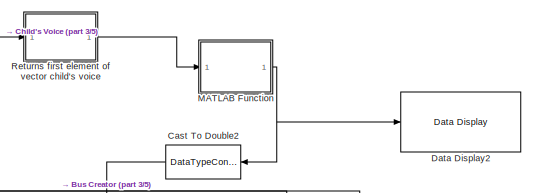
[diagram: root canvas - part 1/5, top center region]
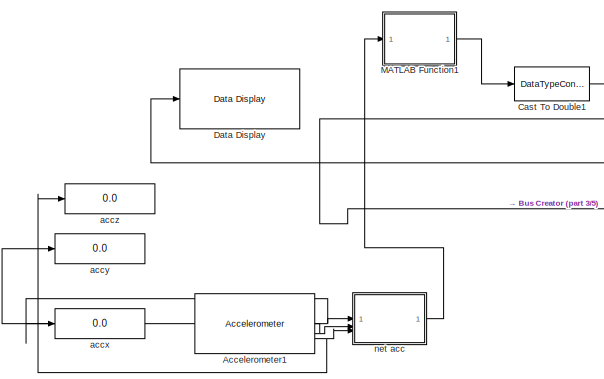
[diagram: root canvas - part 2/5, top left region]
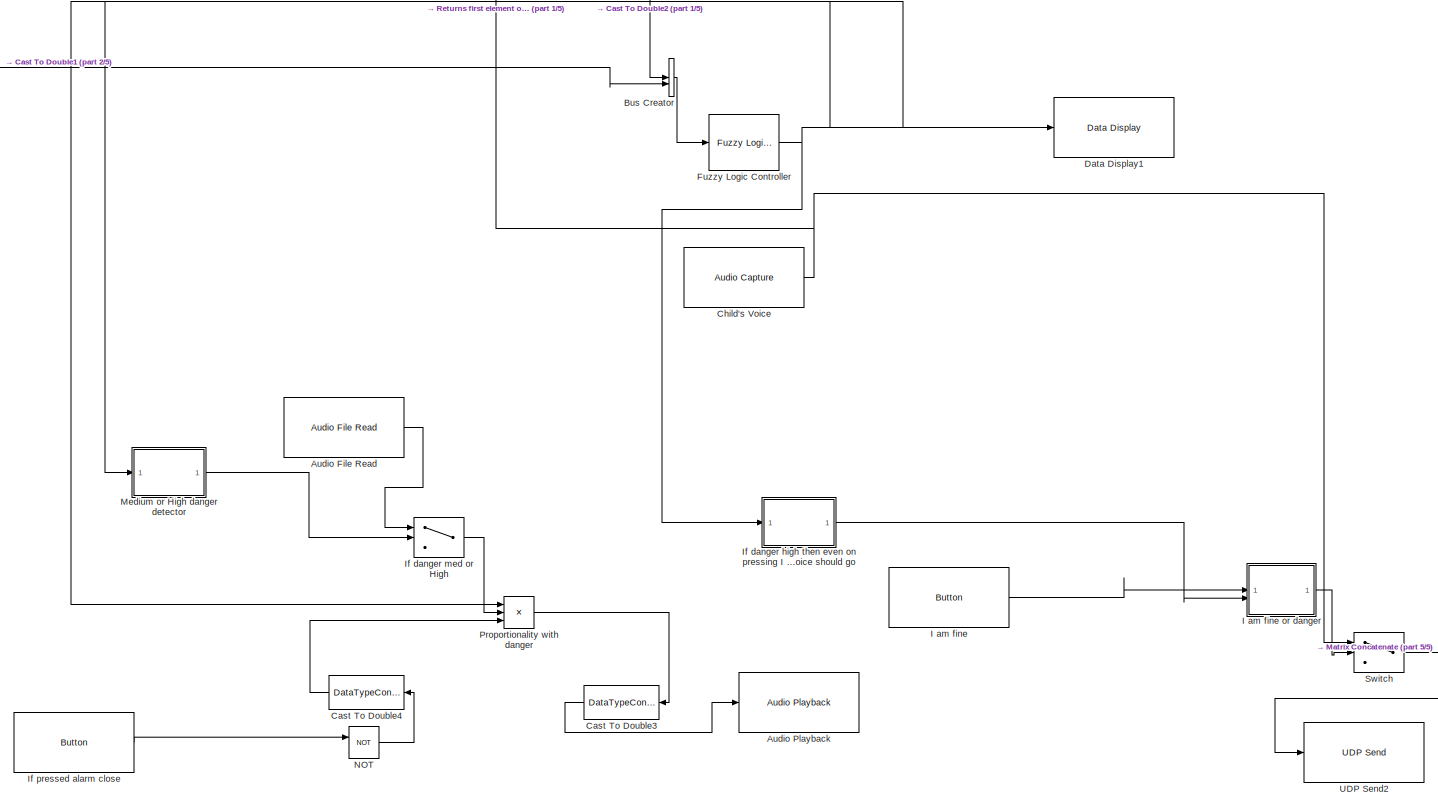
[diagram: root canvas - part 3/5, center side, full height]
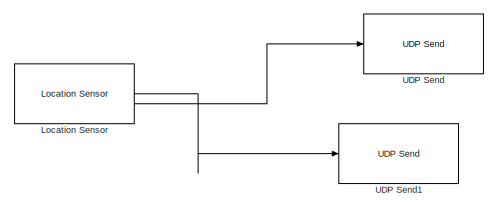
[diagram: root canvas - part 4/5, middle right region]
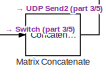
[diagram: root canvas - part 5/5, bottom right region]
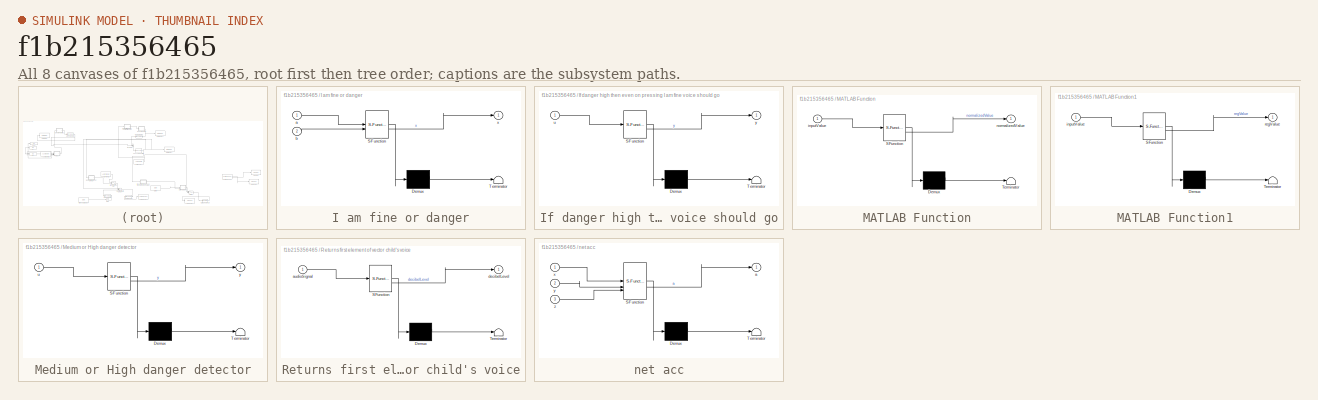
[diagram: thumbnail index - all 8 canvases of the model, root first then tree order]
MODEL slx_f1b215356465
KIND model
CONFIG AbsTol = auto
CONFIG EnableMultiTasking = off
CONFIG FixedStep = auto
CONFIG MaxStep = auto
CONFIG MinStep = auto
CONFIG RelTol = 1e-3
CONFIG SampleTimeConstraint = Unconstrained
CONFIG SolverName = FixedStepAuto
CONFIG StartTime = 0.0
CONFIG StopTime = inf
BLOCK [Reference] Accelerometer1  REF=androidsensorlib/Accelerometer
  SourceBlock = androidsensorlib/Accelerometer
  SourceType = codertarget.internal.androidAccelerometer
BLOCK [Reference] Audio File Read  REF=androidaudiovideolib/Audio File Read
  SourceBlock = androidaudiovideolib/Audio File Read
  SourceType = codertarget.internal.androidAudioFileRead
BLOCK [Reference] Audio Playback  REF=androidaudiovideolib/Audio Playback
  SourceBlock = androidaudiovideolib/Audio Playback
  SourceType = codertarget.internal.androidAudioPlayback
BLOCK [BusCreator] Bus Creator
  DisplayOption = bar
  InheritFromInputs = on
  Inputs = 2
BLOCK [DataTypeConversion] Cast To Double1
  OutDataTypeStr = double
  RndMeth = Floor
  SaturateOnIntegerOverflow = off
BLOCK [DataTypeConversion] Cast To Double2
  OutDataTypeStr = double
  RndMeth = Floor
  SaturateOnIntegerOverflow = off
BLOCK [DataTypeConversion] Cast To Double3
  OutDataTypeStr = int16
  RndMeth = Floor
  SaturateOnIntegerOverflow = off
BLOCK [DataTypeConversion] Cast To Double4
  OutDataTypeStr = double
  RndMeth = Floor
  SaturateOnIntegerOverflow = off
BLOCK [Reference] Child's Voice  REF=androidaudiovideolib/Audio Capture
  SourceBlock = androidaudiovideolib/Audio Capture
  SourceType = codertarget.internal.androidAudioCapture
BLOCK [Reference] Data Display  REF=androiduilib/Data Display
  SourceBlock = androiduilib/Data Display
  SourceType = codertarget.internal.androidDataDisplay
BLOCK [Reference] Data Display1  REF=androiduilib/Data Display
  SourceBlock = androiduilib/Data Display
  SourceType = codertarget.internal.androidDataDisplay
BLOCK [Reference] Data Display2  REF=androiduilib/Data Display
  SourceBlock = androiduilib/Data Display
  SourceType = codertarget.internal.androidDataDisplay
BLOCK [Reference] Fuzzy Logic Controller  REF=fuzblock/Fuzzy Logic   (lib defined in mdl_858b3b3e7478)
Controller
  SourceBlock = fuzblock/Fuzzy Logic \nController
  SourceType = Fuzzy Inference System
BLOCK [Reference] I am fine  REF=androiduilib/Button
  SourceBlock = androiduilib/Button
  SourceType = codertarget.internal.androidButton
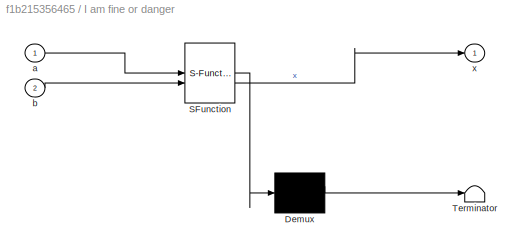
BLOCK [SubSystem] I am fine or danger
  ErrorFcn = Stateflow.Translate.translate
  PermitHierarchicalResolution = ExplicitOnly
  SFBlockType = MATLAB Function
  TreatAsAtomicUnit = on
BLOCK [Demux] I am fine or danger/ Demux 
  Outputs = 1
BLOCK [S-Function] I am fine or danger/ SFunction 
  EnableBusSupport = on
  FunctionName = sf_sfun
  PortCounts = [2 2]
  SFcnIsStateOwnerBlock = off
  SFunctionDeploymentMode = off
  Tag = Stateflow S-Function 1
BLOCK [Terminator] I am fine or danger/ Terminator 
BLOCK [Inport] I am fine or danger/a
BLOCK [Inport] I am fine or danger/b
  Port = 2
BLOCK [Outport] I am fine or danger/x
BLOCK [SubSystem] If danger high then even on pressing I am fine voice should go
  ErrorFcn = Stateflow.Translate.translate
  PermitHierarchicalResolution = ExplicitOnly
  SFBlockType = MATLAB Function
  TreatAsAtomicUnit = on
BLOCK [Demux] If danger high then even on pressing I am fine voice should go/ Demux 
  Outputs = 1
BLOCK [S-Function] If danger high then even on pressing I am fine voice should go/ SFunction 
  EnableBusSupport = on
  FunctionName = sf_sfun
  PortCounts = [1 2]
  SFcnIsStateOwnerBlock = off
  SFunctionDeploymentMode = off
  Tag = Stateflow S-Function 13
BLOCK [Terminator] If danger high then even on pressing I am fine voice should go/ Terminator 
BLOCK [Inport] If danger high then even on pressing I am fine voice should go/u
BLOCK [Outport] If danger high then even on pressing I am fine voice should go/y
BLOCK [Switch] If danger med or High
  Criteria = u2 > Threshold
  InputSameDT = off
  SaturateOnIntegerOverflow = off
BLOCK [Reference] If pressed alarm close  REF=androiduilib/Button
  SourceBlock = androiduilib/Button
  SourceType = codertarget.internal.androidButton
BLOCK [Reference] Location Sensor  REF=androidsensorlib/Location Sensor
  SourceBlock = androidsensorlib/Location Sensor
  SourceType = codertarget.internal.androidLocation
BLOCK [SubSystem] MATLAB Function
  ErrorFcn = Stateflow.Translate.translate
  PermitHierarchicalResolution = ExplicitOnly
  SFBlockType = MATLAB Function
  TreatAsAtomicUnit = on
BLOCK [Demux] MATLAB Function/ Demux 
  Outputs = 1
BLOCK [S-Function] MATLAB Function/ SFunction 
  EnableBusSupport = on
  FunctionName = sf_sfun
  PortCounts = [1 2]
  SFcnIsStateOwnerBlock = off
  SFunctionDeploymentMode = off
  Tag = Stateflow S-Function 4
BLOCK [Terminator] MATLAB Function/ Terminator 
BLOCK [Inport] MATLAB Function/inputValue
BLOCK [Outport] MATLAB Function/normalizedValue
BLOCK [SubSystem] MATLAB Function1
  ErrorFcn = Stateflow.Translate.translate
  PermitHierarchicalResolution = ExplicitOnly
  SFBlockType = MATLAB Function
  TreatAsAtomicUnit = on
BLOCK [Demux] MATLAB Function1/ Demux 
  Outputs = 1
BLOCK [S-Function] MATLAB Function1/ SFunction 
  EnableBusSupport = on
  FunctionName = sf_sfun
  PortCounts = [1 2]
  SFcnIsStateOwnerBlock = off
  SFunctionDeploymentMode = off
  Tag = Stateflow S-Function 5
BLOCK [Terminator] MATLAB Function1/ Terminator 
BLOCK [Inport] MATLAB Function1/inputValue
BLOCK [Outport] MATLAB Function1/regValue
BLOCK [Concatenate] Matrix Concatenate
  ConcatenateDimension = 2
  Mode = Multidimensional array
  NumInputs = 1
BLOCK [SubSystem] Medium or High danger detector
  ErrorFcn = Stateflow.Translate.translate
  PermitHierarchicalResolution = ExplicitOnly
  SFBlockType = MATLAB Function
  TreatAsAtomicUnit = on
BLOCK [Demux] Medium or High danger detector/ Demux 
  Outputs = 1
BLOCK [S-Function] Medium or High danger detector/ SFunction 
  EnableBusSupport = on
  FunctionName = sf_sfun
  PortCounts = [1 2]
  SFcnIsStateOwnerBlock = off
  SFunctionDeploymentMode = off
  Tag = Stateflow S-Function 10
BLOCK [Terminator] Medium or High danger detector/ Terminator 
BLOCK [Inport] Medium or High danger detector/u
BLOCK [Outport] Medium or High danger detector/y
BLOCK [Logic] NOT
  AllPortsSameDT = off
  IconShape = distinctive
  Operator = NOT
  OutDataTypeStr = boolean
BLOCK [Product] Proportionality with danger
  InputSameDT = on
  Inputs = 3
BLOCK [SubSystem] Returns first element of vector child's voice
  ErrorFcn = Stateflow.Translate.translate
  PermitHierarchicalResolution = ExplicitOnly
  SFBlockType = MATLAB Function
  TreatAsAtomicUnit = on
BLOCK [Demux] Returns first element of vector child's voice/ Demux 
  Outputs = 1
BLOCK [S-Function] Returns first element of vector child's voice/ SFunction 
  EnableBusSupport = on
  FunctionName = sf_sfun
  PortCounts = [1 2]
  SFcnIsStateOwnerBlock = off
  SFunctionDeploymentMode = off
  Tag = Stateflow S-Function 3
BLOCK [Terminator] Returns first element of vector child's voice/ Terminator 
BLOCK [Inport] Returns first element of vector child's voice/audioSignal
BLOCK [Outport] Returns first element of vector child's voice/decibelLevel
BLOCK [Switch] Switch
  Criteria = u2 > Threshold
  InputSameDT = off
  SaturateOnIntegerOverflow = off
BLOCK [Reference] UDP Send  REF=androidcommunicationlib/UDP Send
  SourceBlock = androidcommunicationlib/UDP Send
  SourceType = UDP Send
BLOCK [Reference] UDP Send1  REF=androidcommunicationlib/UDP Send
  SourceBlock = androidcommunicationlib/UDP Send
  SourceType = UDP Send
BLOCK [Reference] UDP Send2  REF=androidcommunicationlib/UDP Send
  SourceBlock = androidcommunicationlib/UDP Send
  SourceType = UDP Send
BLOCK [Display] accx
  Decimation = 1
BLOCK [Display] accy
  Decimation = 1
BLOCK [Display] accz
  Decimation = 1
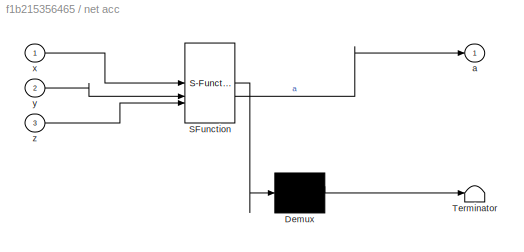
BLOCK [SubSystem] net acc
  ErrorFcn = Stateflow.Translate.translate
  PermitHierarchicalResolution = ExplicitOnly
  SFBlockType = MATLAB Function
  TreatAsAtomicUnit = on
BLOCK [Demux] net acc/ Demux 
  Outputs = 1
BLOCK [S-Function] net acc/ SFunction 
  EnableBusSupport = on
  FunctionName = sf_sfun
  PortCounts = [3 2]
  SFcnIsStateOwnerBlock = off
  SFunctionDeploymentMode = off
  Tag = Stateflow S-Function 2
BLOCK [Terminator] net acc/ Terminator 
BLOCK [Outport] net acc/a
BLOCK [Inport] net acc/x
BLOCK [Inport] net acc/y
  Port = 2
BLOCK [Inport] net acc/z
  Port = 3
NET Accelerometer1:1 -> accx:1, net acc:1
NET Accelerometer1:2 -> accy:1, net acc:2
NET Accelerometer1:3 -> accz:1, net acc:3
LINE Audio File Read:1 -> If danger med or High:1
LINE Bus Creator:1 -> Fuzzy Logic Controller:1
NET Cast To Double1:1 -> Bus Creator:2, Data Display:1
LINE Cast To Double2:1 -> Bus Creator:1
LINE Cast To Double3:1 -> Audio Playback:1
LINE Cast To Double4:1 -> Proportionality with danger:3
NET Child's Voice:1 -> Returns first element of vector child's voice:1, Switch:1
NET Fuzzy Logic Controller:1 -> Data Display1:1, If danger high then even on pressing I am fine voice should go:1, Medium or High danger detector:1, Proportionality with danger:1
LINE I am fine or danger:1 -> Switch:2
LINE I am fine:1 -> I am fine or danger:1
LINE If danger high then even on pressing I am fine voice should go:1 -> I am fine or danger:2
LINE If danger med or High:1 -> Proportionality with danger:2
LINE If pressed alarm close:1 -> NOT:1
LINE Location Sensor:1 -> UDP Send1:1
LINE Location Sensor:2 -> UDP Send:1
LINE MATLAB Function1:1 -> Cast To Double1:1
NET MATLAB Function:1 -> Cast To Double2:1, Data Display2:1
LINE Matrix Concatenate:1 -> UDP Send2:1
LINE Medium or High danger detector:1 -> If danger med or High:2
LINE NOT:1 -> Cast To Double4:1
LINE Proportionality with danger:1 -> Cast To Double3:1
LINE Returns first element of vector child's voice:1 -> MATLAB Function:1
LINE Switch:1 -> Matrix Concatenate:1
LINE net acc:1 -> MATLAB Function1:1
note: NET lines group one-source signal fan-out (src -> all destinations, sorted); 1:1 wires keep LINE
CHART net acc states=1 transitions=1
  STATE_LABEL 'eML_blk_kernel()'
  STATE_LABEL 'SCRIPT:\nfunction a = fcn(x,y,z)\n\na = (x^2+y^2+z^2)^(0.5);\n'
CHART Returns first element of vector child's voice states=1 transitions=1
  STATE_LABEL 'eML_blk_kernel()'
  STATE_LABEL 'SCRIPT:\nfunction decibelLevel = calculateDecibel(audioSignal)\n    % Convert int16 values to double for calculations\n    audioSignal = double(audioSignal);\n    \n    % Separate left and right channels\n    leftChannel = audioSignal(:, 1);\n    rightChannel = audioSignal(:, 2);\n\n    % Combine left and right channels for RMS calculation\n    combinedSignal = (leftChannel + rightChannel) / 2;\n\n    % Defin...<+735ch>'
CHART MATLAB Function states=1 transitions=1
  STATE_LABEL 'eML_blk_kernel()'
  STATE_LABEL 'SCRIPT:\nfunction normalizedValue = normalizeInput(inputValue)\n    % Ensure input value falls within the specified range\n    if inputValue < 30\n        inputValue = 30;\n    elseif inputValue > 100\n        inputValue = 100;\n    end\n\n    % Perform normalization\n    normalizedValue = (inputValue - 40) / (100);\nend\n'
CHART MATLAB Function1 states=1 transitions=1
  STATE_LABEL 'eML_blk_kernel()'
  STATE_LABEL "SCRIPT:\nfunction regValue = normalizeInput(inputValue)\n    % Ensure input value falls within the specified range\n    if inputValue < single(0)  % Cast 0 to 'single' data type\n        inputValue = single(0);\n    elseif inputValue > single(30)  % Cast 30 to 'single' data type\n        inputValue = single(30);\n    end\n\n    % Perform normalization\n    regValue = (inputValue - single(9)) / single(30);  ...<+36ch>"
CHART Medium or High danger detector states=1 transitions=1
  STATE_LABEL 'eML_blk_kernel()'
  STATE_LABEL 'SCRIPT:\nfunction y = fcn(u)\n    if(u<0.25)\n        y = int16(0);\n    \n    else\n       y = int16(1);\n    end'
CHART If danger high then even on pressing I am fine voice should go states=1 transitions=1
  STATE_LABEL 'eML_blk_kernel()'
  STATE_LABEL 'SCRIPT:\nfunction y = fcn(u)\n    if(u<0.5)\n        y = int16(0);\n    else\n       y = int16(1);\n    end'
CHART I am fine or danger states=1 transitions=1
  STATE_LABEL 'eML_blk_kernel()'
  STATE_LABEL 'SCRIPT:\nfunction x = fcn(a,b)\n\nx=a|b;\n'
CHART  states=0 transitions=0
CHART  states=0 transitions=0
CHART  states=0 transitions=0
CHART  states=0 transitions=0
CHART  states=0 transitions=0
CHART  states=0 transitions=0
CHART  states=0 transitions=0
